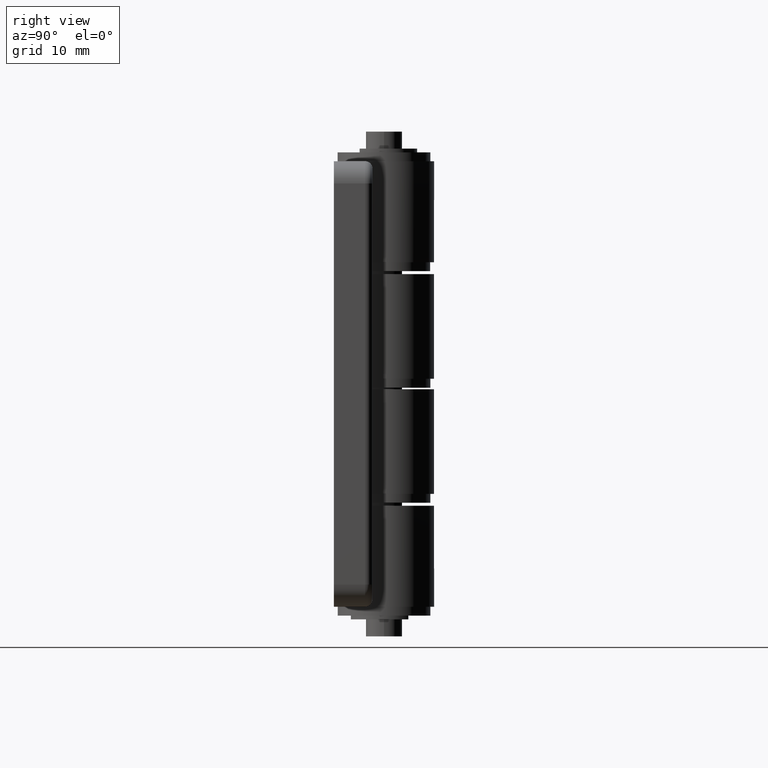
[diagram: clean part render]
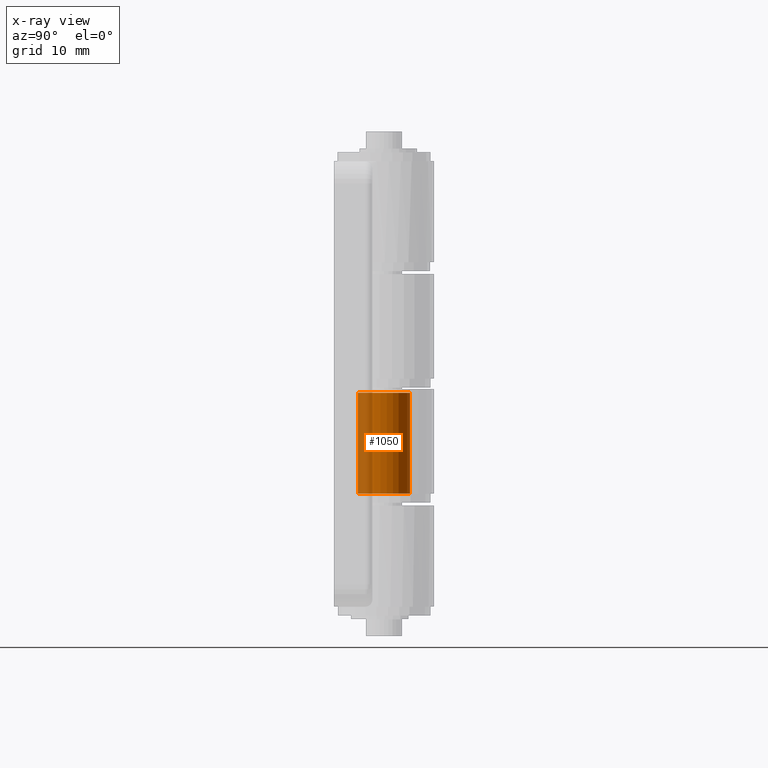
[diagram: x-ray — body ghosted, one internal face saturated and labeled with its STEP entity id]
A machine part, right view, then the same camera in x-ray: the body is ghosted and one INTERNAL B-rep face — a face not visible from any outside direction — is saturated and labeled: STEP entity #1050.
In plain terms, the highlighted cylindrical surface (edge-blend (fillet) strip) has radius 3.5 mm, axis along (0, -0, -1).
Its self-contained STEP definition (entity closure, byte-faithful):
#175=FACE_OUTER_BOUND('',#254,.T.);
#254=EDGE_LOOP('',(#943,#944,#945,#946));
#326=LINE('',#1821,#399);
#330=LINE('',#1830,#403);
#399=VECTOR('',#1489,13.6);
#403=VECTOR('',#1495,13.6);
#462=CIRCLE('',#1176,3.5);
#463=CIRCLE('',#1177,3.5);
#554=VERTEX_POINT('',#1818);
#555=VERTEX_POINT('',#1820);
#558=VERTEX_POINT('',#1827);
#559=VERTEX_POINT('',#1829);
#683=EDGE_CURVE('',#555,#554,#326,.T.);
#687=EDGE_CURVE('',#559,#558,#330,.T.);
#691=EDGE_CURVE('',#554,#559,#462,.T.);
#692=EDGE_CURVE('',#555,#558,#463,.T.);
#943=ORIENTED_EDGE('',*,*,#683,.T.);
#944=ORIENTED_EDGE('',*,*,#691,.T.);
#945=ORIENTED_EDGE('',*,*,#687,.T.);
#946=ORIENTED_EDGE('',*,*,#692,.F.);
#993=CYLINDRICAL_SURFACE('',#1175,3.5);
#1050=ADVANCED_FACE('',(#175),#993,.T.);
#1175=AXIS2_PLACEMENT_3D('',#1836,#1499,#1500);
#1176=AXIS2_PLACEMENT_3D('',#1837,#1501,#1502);
#1177=AXIS2_PLACEMENT_3D('',#1838,#1503,#1504);
#1489=DIRECTION('',(-5.62613019235721E-16,1.,0.));
#1495=DIRECTION('',(5.62613019235721E-16,-1.,0.));
#1499=DIRECTION('center_axis',(5.62613019235721E-16,-1.,0.));
#1500=DIRECTION('ref_axis',(1.,4.80489795402845E-16,0.));
#1501=DIRECTION('center_axis',(5.62613019235721E-16,-1.,0.));
#1502=DIRECTION('ref_axis',(1.,5.62613019235721E-16,0.));
#1503=DIRECTION('center_axis',(5.62613019235721E-16,-1.,0.));
#1504=DIRECTION('ref_axis',(1.,5.62613019235721E-16,0.));
#1818=CARTESIAN_POINT('',(0.249999999999993,14.8,-3.49106001094224));
#1820=CARTESIAN_POINT('',(0.25,1.2,-3.49106001094223));
#1821=CARTESIAN_POINT('',(0.249999999999997,8.,-3.49106001094224));
#1827=CARTESIAN_POINT('',(-0.249999999999999,1.2,-3.49106001094223));
#1829=CARTESIAN_POINT('',(-0.250000000000007,14.8,-3.49106001094224));
#1830=CARTESIAN_POINT('',(-0.250000000000003,8.,-3.49106001094224));
#1836=CARTESIAN_POINT('Origin',(-4.50090415388577E-15,8.,0.));
#1837=CARTESIAN_POINT('Origin',(-8.32667268468867E-15,14.8,0.));
#1838=CARTESIAN_POINT('Origin',(-6.75135623082865E-16,1.2,0.));